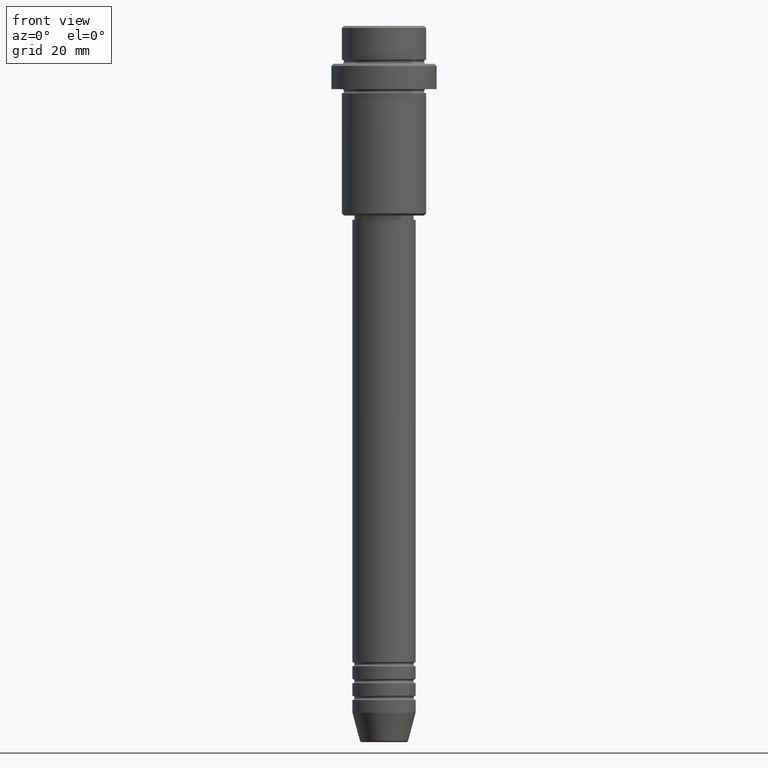
[diagram: clean part render]
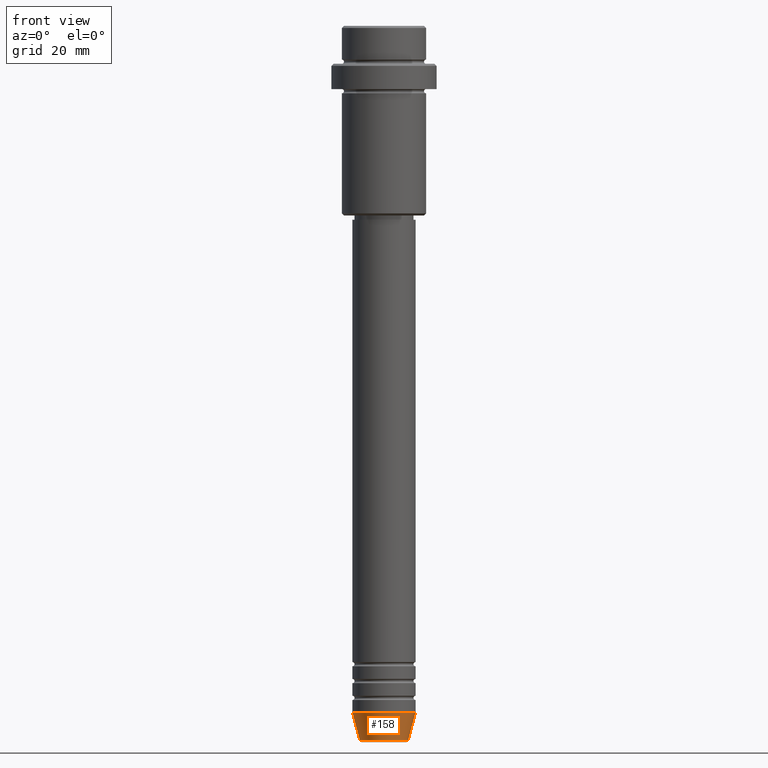
[diagram: same view with one face highlighted and labeled with its STEP entity id]
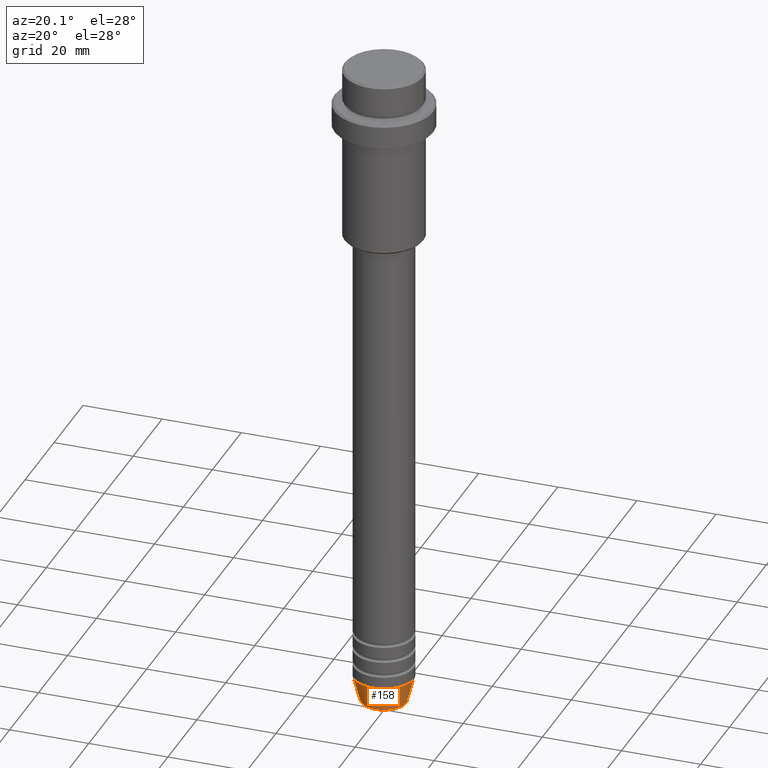
[diagram: same view with one face highlighted and labeled with its STEP entity id]
A machine part, front view. The second image highlights one B-rep face of the part: STEP entity #158.
A second angle (auxiliary view) of the same face is appended — the face is thin or edge-on in the first view.
In plain terms, the highlighted conical surface has half-angle 15 deg.
Its self-contained STEP definition (entity closure, byte-faithful):
#3 = DIRECTION ( 'NONE',  ( -0.2588190451025213501, 3.169619151431772337E-17, 0.9659258262890680902 ) ) ;
#53 = CARTESIAN_POINT ( 'NONE',  ( 0.000000000000000000, 0.000000000000000000, -169.6294095225512422 ) ) ;
#92 = VERTEX_POINT ( 'NONE', #1122 ) ;
#103 = CARTESIAN_POINT ( 'NONE',  ( 0.000000000000000000, 0.000000000000000000, -163.0000000000000000 ) ) ;
#105 = CARTESIAN_POINT ( 'NONE',  ( -7.500000000000000000, 9.184850993605147944E-16, -163.0000000000000000 ) ) ;
#108 = LINE ( 'NONE', #756, #999 ) ;
#158 = ADVANCED_FACE ( 'NONE', ( #563 ), #1224, .T. ) ;
#159 = VERTEX_POINT ( 'NONE', #893 ) ;
#211 = ORIENTED_EDGE ( 'NONE', *, *, #249, .F. ) ;
#234 = CARTESIAN_POINT ( 'NONE',  ( -7.500000000000000000, 9.184850993605147944E-16, -163.0000000000000000 ) ) ;
#249 = EDGE_CURVE ( 'NONE', #92, #779, #1061, .T. ) ;
#262 = AXIS2_PLACEMENT_3D ( 'NONE', #103, #455, #973 ) ;
#390 = DIRECTION ( 'NONE',  ( -0.000000000000000000, -0.000000000000000000, 1.000000000000000000 ) ) ;
#405 = CIRCLE ( 'NONE', #515, 5.723655072137197486 ) ;
#434 = EDGE_LOOP ( 'NONE', ( #211, #905, #571, #559 ) ) ;
#455 = DIRECTION ( 'NONE',  ( -0.000000000000000000, -0.000000000000000000, 1.000000000000000000 ) ) ;
#486 = DIRECTION ( 'NONE',  ( -0.000000000000000000, -0.000000000000000000, 1.000000000000000000 ) ) ;
#511 = EDGE_CURVE ( 'NONE', #779, #159, #928, .T. ) ;
#515 = AXIS2_PLACEMENT_3D ( 'NONE', #53, #390, #718 ) ;
#559 = ORIENTED_EDGE ( 'NONE', *, *, #511, .F. ) ;
#563 = FACE_OUTER_BOUND ( 'NONE', #434, .T. ) ;
#571 = ORIENTED_EDGE ( 'NONE', *, *, #1162, .T. ) ;
#713 = DIRECTION ( 'NONE',  ( 1.000000000000000000, 0.000000000000000000, 0.000000000000000000 ) ) ;
#718 = DIRECTION ( 'NONE',  ( 1.000000000000000000, 0.000000000000000000, 0.000000000000000000 ) ) ;
#756 = CARTESIAN_POINT ( 'NONE',  ( 7.500000000000000000, 0.000000000000000000, -163.0000000000000000 ) ) ;
#761 = VECTOR ( 'NONE', #3, 1000.000000000000000 ) ;
#779 = VERTEX_POINT ( 'NONE', #234 ) ;
#870 = CARTESIAN_POINT ( 'NONE',  ( 5.723655072137197486, 0.000000000000000000, -169.6294095225512422 ) ) ;
#893 = CARTESIAN_POINT ( 'NONE',  ( 7.500000000000000000, 0.000000000000000000, -163.0000000000000000 ) ) ;
#901 = EDGE_CURVE ( 'NONE', #92, #1193, #405, .T. ) ;
#905 = ORIENTED_EDGE ( 'NONE', *, *, #901, .T. ) ;
#928 = CIRCLE ( 'NONE', #1047, 7.500000000000000000 ) ;
#973 = DIRECTION ( 'NONE',  ( 1.000000000000000000, 0.000000000000000000, 0.000000000000000000 ) ) ;
#999 = VECTOR ( 'NONE', #1091, 1000.000000000000000 ) ;
#1047 = AXIS2_PLACEMENT_3D ( 'NONE', #1141, #486, #713 ) ;
#1061 = LINE ( 'NONE', #105, #761 ) ;
#1091 = DIRECTION ( 'NONE',  ( 0.2588190451025213501, 0.000000000000000000, 0.9659258262890680902 ) ) ;
#1122 = CARTESIAN_POINT ( 'NONE',  ( -5.723655072137197486, 8.097153428560739859E-16, -169.6294095225512422 ) ) ;
#1141 = CARTESIAN_POINT ( 'NONE',  ( 0.000000000000000000, 0.000000000000000000, -163.0000000000000000 ) ) ;
#1162 = EDGE_CURVE ( 'NONE', #1193, #159, #108, .T. ) ;
#1193 = VERTEX_POINT ( 'NONE', #870 ) ;
#1224 = CONICAL_SURFACE ( 'NONE', #262, 7.500000000000000000, 0.2617993877991500740 ) ;